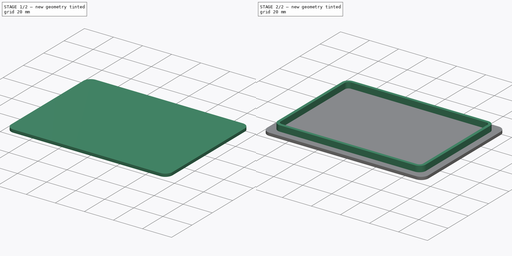
[diagram: build sequence overview — one tinted view per stage of 2, left to right]
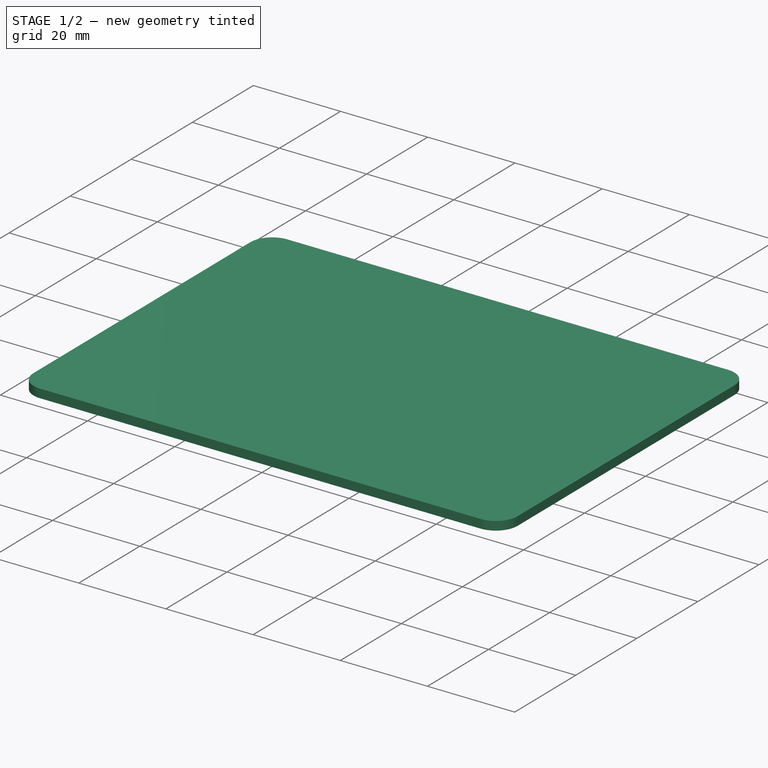
[diagram: stage 1 of 2 — iso view after this stage's code; geometry added in this stage tinted green]
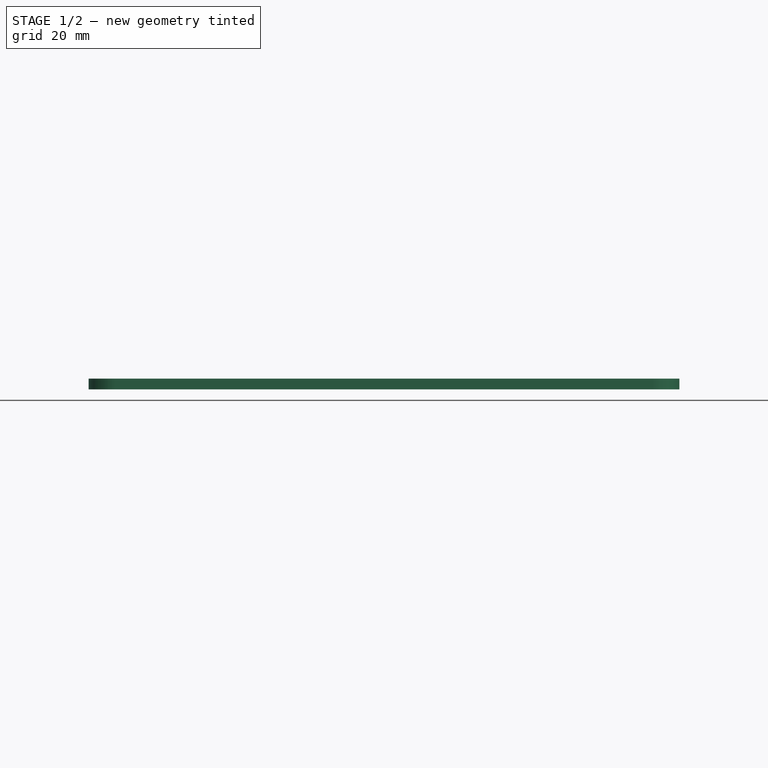
[diagram: stage 1 of 2 — front view after this stage's code; geometry added in this stage tinted green]
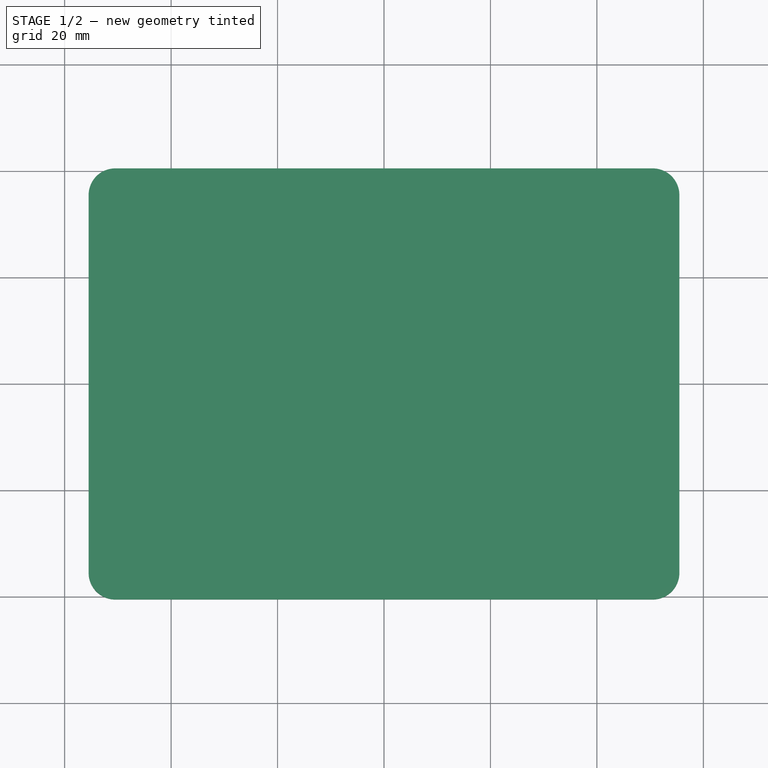
[diagram: stage 1 of 2 — top view after this stage's code; geometry added in this stage tinted green]
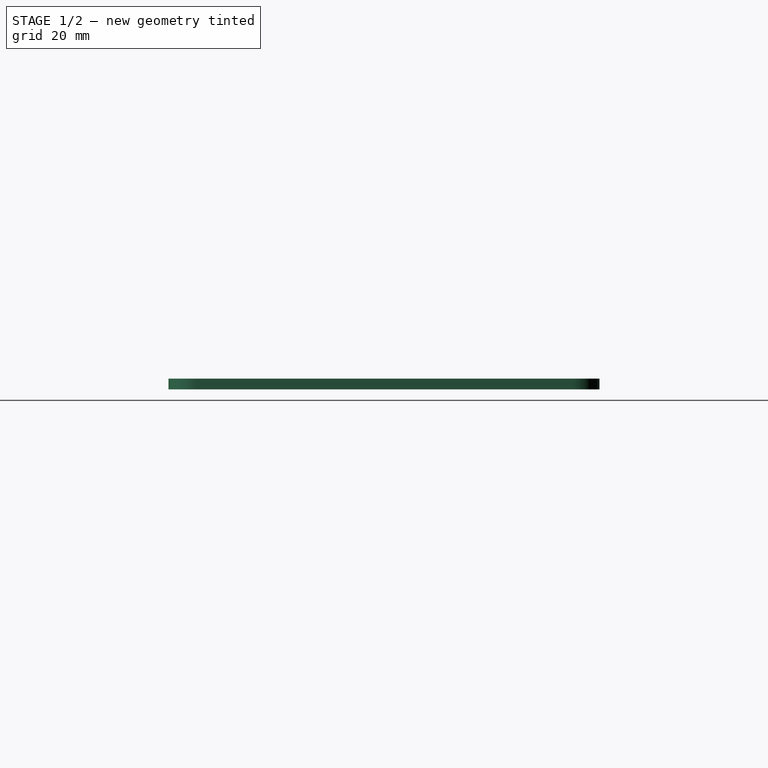
[diagram: stage 1 of 2 — right view after this stage's code; geometry added in this stage tinted green]
FCSTD DOCUMENT  (FreeCAD 0.19R24267 +99 (Git))
Label: V4-lid
License: All rights reserved
LicenseURL: http://en.wikipedia.org/wiki/All_rights_reserved
objects: Sketcher::SketchObject×2, PartDesign::Pad×2, PartDesign::Body×1, Spreadsheet::Sheet×1
note: 7 computed .brp shape members not serialized (recipe doc carries the construction recipe); baked Part::Feature solids carry a one-line shape summary decoded from their .brp

FEATURE [Sketcher::SketchObject] Sketch  label="main_lid"
  FullyConstrained = true
  MapMode = 5
  Support = -> [XY_Plane]
  expr: Constraints[38] = <<param>>.lid_L
  expr: Constraints[37] = <<param>>.lid_W
  sketch-geometry (16):
    g0: LineSegment StartX=-50.5 StartY=35.5 StartZ=0 EndX=50.5 EndY=35.5 EndZ=0
    g1: LineSegment StartX=50.5 StartY=35.5 StartZ=0 EndX=50.5 EndY=-35.5 EndZ=0
    g2: LineSegment StartX=50.5 StartY=-35.5 StartZ=0 EndX=-50.5 EndY=-35.5 EndZ=0
    g3: LineSegment StartX=-50.5 StartY=-35.5 StartZ=0 EndX=-50.5 EndY=35.5 EndZ=0
    g4: ArcOfCircle CenterX=-50.5 CenterY=35.5 CenterZ=0 NormalX=0 NormalY=0 NormalZ=1 AngleXU=0 Radius=5 StartAngle=1.57079 EndAngle=3.14159
    g5: ArcOfCircle CenterX=-50.5 CenterY=-35.5 CenterZ=0 NormalX=0 NormalY=0 NormalZ=1 AngleXU=0 Radius=5 StartAngle=3.14159 EndAngle=4.71239
    g6: ArcOfCircle CenterX=50.5 CenterY=-35.5 CenterZ=0 NormalX=0 NormalY=0 NormalZ=1 AngleXU=0 Radius=5 StartAngle=4.71239 EndAngle=6.28318
    g7: ArcOfCircle CenterX=50.5 CenterY=35.5 CenterZ=0 NormalX=0 NormalY=0 NormalZ=1 AngleXU=0 Radius=5 StartAngle=0 EndAngle=1.5708
    g8: LineSegment StartX=-50.5 StartY=40.5 StartZ=0 EndX=50.5 EndY=40.5 EndZ=0
    g9: LineSegment StartX=55.5 StartY=35.5 StartZ=0 EndX=55.5 EndY=-35.5 EndZ=0
    g10: LineSegment StartX=50.5 StartY=-40.5 StartZ=0 EndX=-50.5 EndY=-40.5 EndZ=0
    g11: LineSegment StartX=-55.5 StartY=-35.5 StartZ=0 EndX=-55.5 EndY=35.5 EndZ=0
    g12: LineSegment StartX=50.5 StartY=40.5 StartZ=0 EndX=50.5 EndY=35.5 EndZ=0
    g13: LineSegment StartX=50.5 StartY=35.5 StartZ=0 EndX=55.5 EndY=35.5 EndZ=0
    g14: LineSegment StartX=-55.5 StartY=-35.5 StartZ=0 EndX=-50.5 EndY=-35.5 EndZ=0
    g15: LineSegment StartX=-50.5 StartY=-40.5 StartZ=0 EndX=-50.5 EndY=-35.5 EndZ=0
  constraints (42):
    c: Coincident(g0,g1)
    c: Coincident(g1,g2)
    c: Coincident(g2,g3)
    c: Coincident(g3,g0)
    c: Horizontal(g2)
    c: Vertical(g3)
    c: Coincident(g4,g0)
    c: Coincident(g5,g2)
    c: Coincident(g6,g1)
    c: Coincident(g7,g0)
    c: Coincident(g8,g4)
    c: Coincident(g8,g7)
    c: Horizontal(g8)
    c: Coincident(g9,g7)
    c: Coincident(g9,g6)
    c: Vertical(g9)
    c: Coincident(g10,g5)
    c: Horizontal(g10)
    c: Coincident(g11,g5)
    c: Coincident(g11,g4)
    c: Vertical(g11)
    c: Equal(g8,g10)
    c: Equal(g9,g11)
    c: Coincident(g10,g6)
    c: Equal(g7,g4)
    c: Equal(g4,g5)
    c: Coincident(g12,g7)
    c: Coincident(g12,g7)
    c: Coincident(g13,g7)
    c: Coincident(g13,g7)
    c: Horizontal(g13)
    c: Coincident(g14,g5)
    c: Coincident(g15,g5)
    c: Coincident(g15,g5)
    c: Coincident(g14,g5)
    c: Vertical(g15)
    c: Horizontal(g14)
    c: DistanceX(g8,g8) = 101
    c: DistanceY(g11,g11) = 71
    c: Radius(g4) = 5
    c: Symmetric(g4,g7,g-2)
    c: Symmetric(g7,g6,g-1)
FEATURE [PartDesign::Pad] Pad
  Direction = (1,1,1)
  Length = 2
  Length2 = 100
  Profile = -> Sketch
  Type = 0
  expr: Length = <<param>>.lid_H
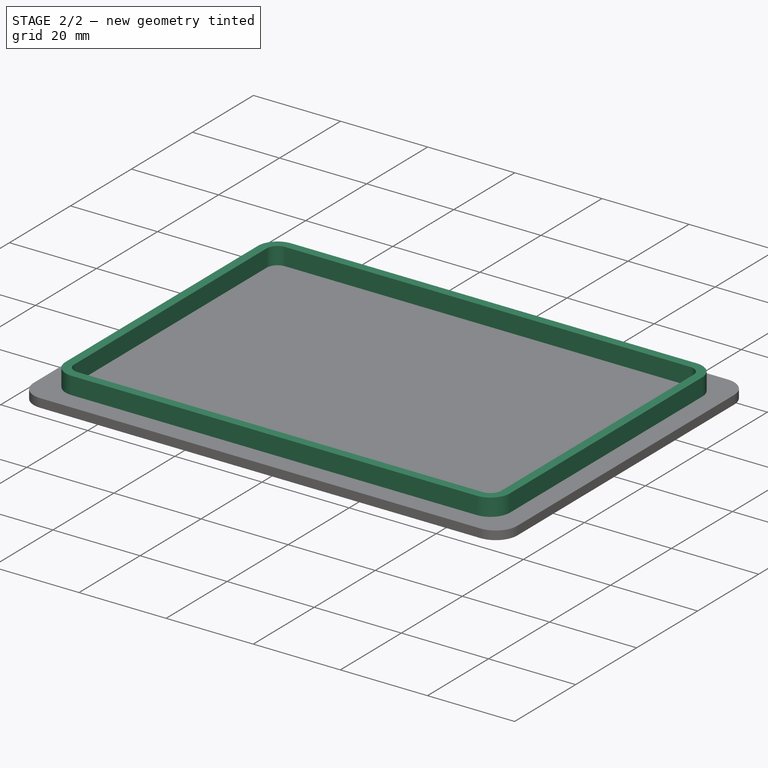
[diagram: stage 2 of 2 — iso view after this stage's code; geometry added in this stage tinted green]
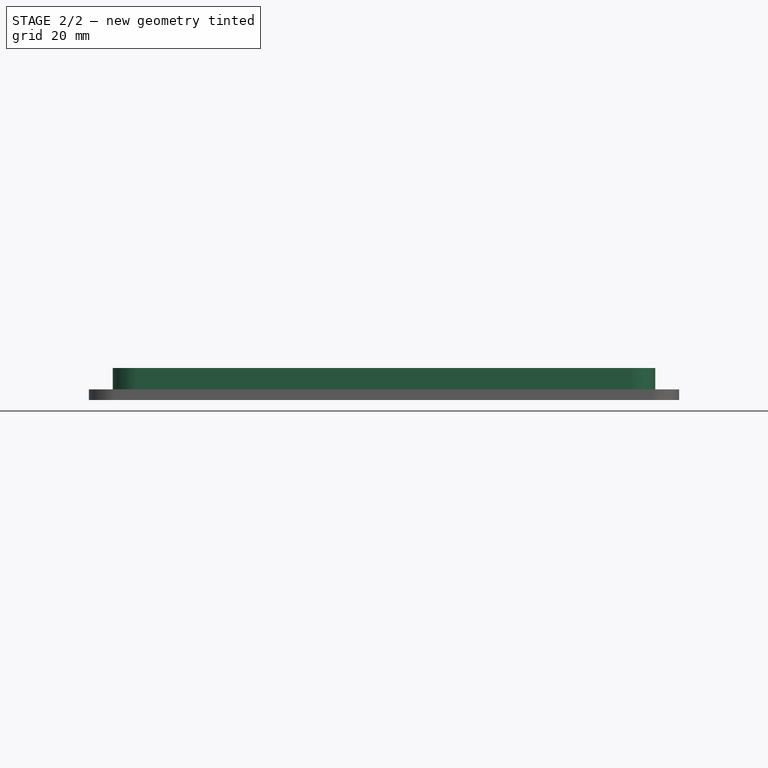
[diagram: stage 2 of 2 — front view after this stage's code; geometry added in this stage tinted green]
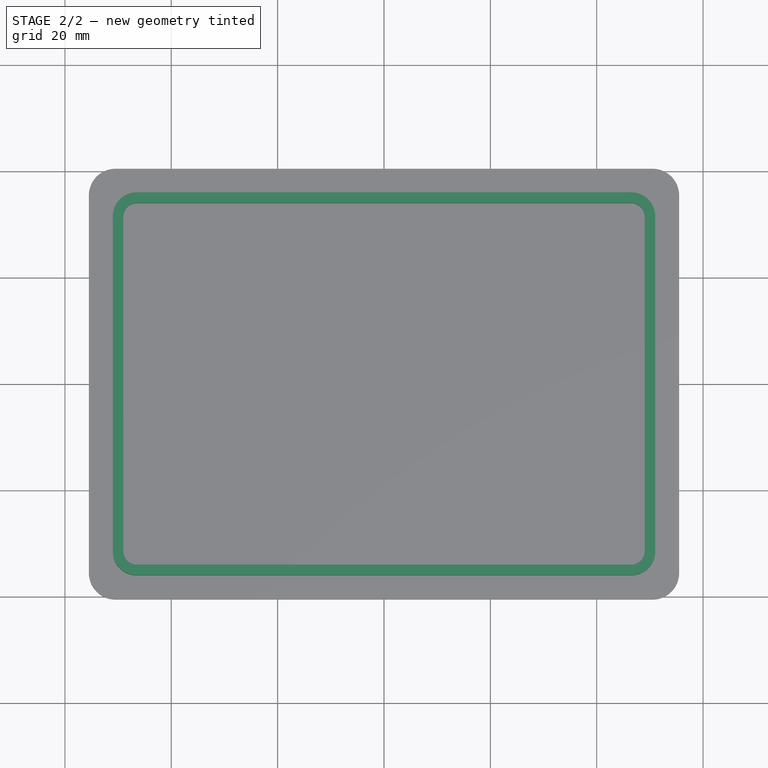
[diagram: stage 2 of 2 — top view after this stage's code; geometry added in this stage tinted green]
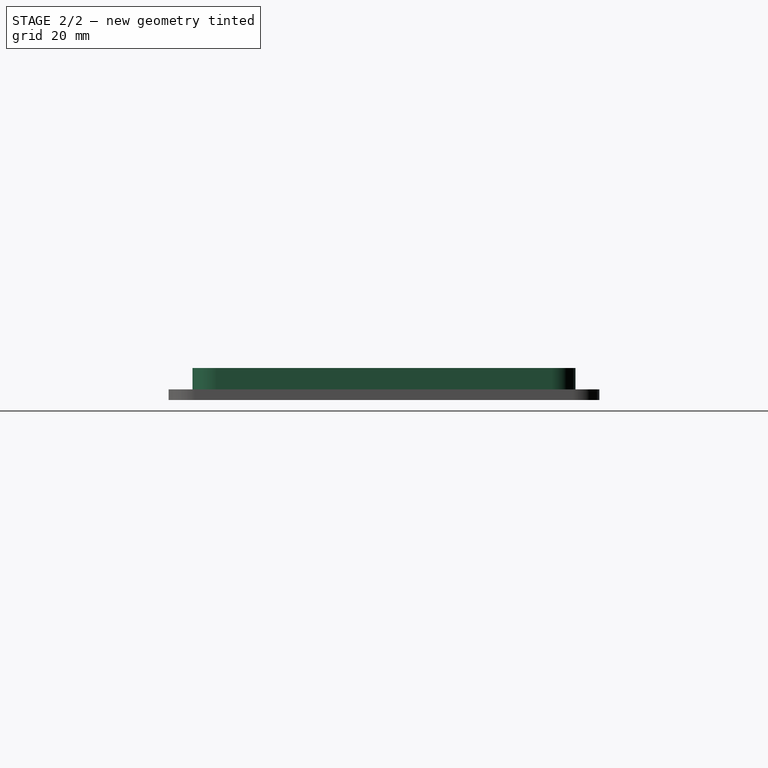
[diagram: stage 2 of 2 — right view after this stage's code; geometry added in this stage tinted green]
FEATURE [Sketcher::SketchObject] Sketch001  label="lid_ring"
  FullyConstrained = true
  MapMode = 5
  Placement = pos=(0,0,2) rot=(0,0,1;0rad)
  Support = -> [Pad]
  expr: Constraints[77] = <<param>>.ring_T
  expr: Constraints[79] = <<param>>.ring_L
  expr: Constraints[78] = <<param>>.ring_W
  sketch-geometry (31):
    g0: LineSegment StartX=-46.5 StartY=31.5 StartZ=0 EndX=46.5 EndY=31.5 EndZ=0
    g1: LineSegment StartX=46.5 StartY=31.5 StartZ=0 EndX=46.5 EndY=-31.5 EndZ=0
    g2: LineSegment StartX=46.5 StartY=-31.5 StartZ=0 EndX=-46.5 EndY=-31.5 EndZ=0
    g3: LineSegment StartX=-46.5 StartY=-31.5 StartZ=0 EndX=-46.5 EndY=31.5 EndZ=0
    g4: ArcOfCircle CenterX=-46.5 CenterY=31.5 CenterZ=0 NormalX=0 NormalY=0 NormalZ=1 AngleXU=0 Radius=2.5 StartAngle=1.5708 EndAngle=3.14159
    g5: ArcOfCircle CenterX=-46.5 CenterY=-31.5 CenterZ=0 NormalX=0 NormalY=0 NormalZ=1 AngleXU=0 Radius=2.5 StartAngle=3.14159 EndAngle=4.71239
    g6: ArcOfCircle CenterX=46.5 CenterY=-31.5 CenterZ=0 NormalX=0 NormalY=0 NormalZ=1 AngleXU=0 Radius=2.5 StartAngle=4.71239 EndAngle=6.28319
    g7: ArcOfCircle CenterX=46.5 CenterY=31.5 CenterZ=0 NormalX=0 NormalY=0 NormalZ=1 AngleXU=0 Radius=2.5 StartAngle=6.28318 EndAngle=7.85398
    g8: ArcOfCircle CenterX=46.5 CenterY=31.5 CenterZ=0 NormalX=0 NormalY=0 NormalZ=1 AngleXU=0 Radius=4.5 StartAngle=1.28774e-08 EndAngle=1.5708
    g9: ArcOfCircle CenterX=-46.5 CenterY=31.5 CenterZ=0 NormalX=0 NormalY=0 NormalZ=1 AngleXU=0 Radius=4.5 StartAngle=1.5708 EndAngle=3.14159
    g10: ArcOfCircle CenterX=-46.5 CenterY=-31.5 CenterZ=0 NormalX=0 NormalY=0 NormalZ=1 AngleXU=0 Radius=4.5 StartAngle=3.14159 EndAngle=4.71239
    g11: ArcOfCircle CenterX=46.5 CenterY=-31.5 CenterZ=0 NormalX=0 NormalY=0 NormalZ=1 AngleXU=0 Radius=4.5 StartAngle=4.71239 EndAngle=6.28319
    g12: LineSegment StartX=-51 StartY=31.5 StartZ=0 EndX=-51 EndY=-31.5 EndZ=0
    g13: LineSegment StartX=-49 StartY=-31.5 StartZ=0 EndX=-49 EndY=31.5 EndZ=0
    g14: LineSegment StartX=-46.5 StartY=34 StartZ=0 EndX=46.5 EndY=34 EndZ=0
    g15: LineSegment StartX=46.5 StartY=36 StartZ=0 EndX=-46.5 EndY=36 EndZ=0
    g16: LineSegment StartX=49 StartY=-31.5 StartZ=0 EndX=49 EndY=31.5 EndZ=0
    g17: LineSegment StartX=51 StartY=31.5 StartZ=0 EndX=51 EndY=-31.5 EndZ=0
    g18: LineSegment StartX=46.5 StartY=-36 StartZ=0 EndX=-46.5 EndY=-36 EndZ=0
    g19: LineSegment StartX=-46.5 StartY=-34 StartZ=0 EndX=46.5 EndY=-34 EndZ=0
    g20: LineSegment StartX=-46.5 StartY=36 StartZ=0 EndX=-46.5 EndY=34 EndZ=0
    g21: LineSegment StartX=-46.5 StartY=34 StartZ=0 EndX=-46.5 EndY=31.5 EndZ=0
    g22: LineSegment StartX=-46.5 StartY=31.5 StartZ=0 EndX=-49 EndY=31.5 EndZ=0
    g23: LineSegment StartX=-49 StartY=31.5 StartZ=0 EndX=-51 EndY=31.5 EndZ=0
    g24: LineSegment StartX=46.5 StartY=-36 StartZ=0 EndX=46.5 EndY=-34 EndZ=0
    g25: LineSegment StartX=46.5 StartY=-34 StartZ=0 EndX=46.5 EndY=-31.5 EndZ=0
    g26: LineSegment StartX=46.5 StartY=-31.5 StartZ=0 EndX=49 EndY=-31.5 EndZ=0
    g27: LineSegment StartX=49 StartY=-31.5 StartZ=0 EndX=51 EndY=-31.5 EndZ=0
    g28: LineSegment StartX=-51 StartY=-31.5 StartZ=0 EndX=-49 EndY=-31.5 EndZ=0
    g29: LineSegment StartX=-49 StartY=-31.5 StartZ=0 EndX=-46.5 EndY=-31.5 EndZ=0
    g30: LineSegment StartX=46.5 StartY=36 StartZ=0 EndX=46.5 EndY=34 EndZ=0
  constraints (81):
    c: Coincident(g0,g1)
    c: Coincident(g1,g2)
    c: Coincident(g2,g3)
    c: Coincident(g3,g0)
    c: Horizontal(g2)
    c: Vertical(g1)
    c: Coincident(g4,g0)
    c: Coincident(g5,g2)
    c: Coincident(g6,g1)
    c: Coincident(g7,g0)
    c: Coincident(g8,g7)
    c: Coincident(g9,g4)
    c: Coincident(g10,g5)
    c: Coincident(g11,g6)
    c: Coincident(g12,g9)
    c: Coincident(g12,g10)
    c: Coincident(g13,g5)
    c: Coincident(g13,g4)
    c: Coincident(g14,g4)
    c: Coincident(g14,g7)
    c: Horizontal(g14)
    c: Coincident(g15,g8)
    c: Coincident(g15,g9)
    c: Horizontal(g15)
    c: Coincident(g16,g6)
    c: Coincident(g16,g7)
    c: Vertical(g16)
    c: Coincident(g17,g8)
    c: Coincident(g17,g11)
    c: Coincident(g18,g11)
    c: Coincident(g18,g10)
    c: Horizontal(g18)
    c: Coincident(g19,g5)
    c: Coincident(g19,g6)
    c: Horizontal(g19)
    c: Vertical(g17)
    c: Vertical(g12)
    c: Equal(g9,g8)
    c: Equal(g8,g11)
    c: Equal(g11,g10)
    c: Equal(g4,g5)
    c: Equal(g5,g6)
    c: Equal(g6,g7)
    c: Coincident(g20,g9)
    c: Coincident(g20,g4)
    c: Coincident(g21,g4)
    c: Coincident(g21,g4)
    c: Coincident(g22,g4)
    c: Coincident(g22,g4)
    c: Coincident(g23,g4)
    c: Coincident(g23,g9)
    c: Coincident(g24,g11)
    c: Coincident(g24,g6)
    c: Coincident(g25,g6)
    c: Coincident(g25,g6)
    c: Vertical(g25)
    c: Coincident(g26,g6)
    c: Coincident(g26,g6)
    c: Coincident(g27,g6)
    c: Coincident(g27,g11)
    c: Horizontal(g26)
    c: Horizontal(g27)
    c: Vertical(g24)
    c: Vertical(g20)
    c: Vertical(g21)
    c: Horizontal(g23)
    c: Horizontal(g22)
    c: Symmetric(g7,g4,g-2)
    c: Symmetric(g5,g4,g-1)
    c: Coincident(g28,g10)
    c: Coincident(g28,g5)
    c: PointOnObject(g29,g5)
    c: Coincident(g29,g5)
    c: Horizontal(g29)
    c: Horizontal(g28)
    c: Coincident(g30,g8)
    c: Coincident(g30,g7)
    c: DistanceY(g30,g30) = 2
    c: DistanceX(g15,g15) = 93
    c: DistanceY(g17,g17) = 63
    c: Radius(g9) = 4.5
FEATURE [PartDesign::Pad] Pad001
  BaseFeature = -> Pad
  Direction = (1,1,1)
  Length = 4
  Length2 = 100
  Profile = -> Sketch001
  Type = 0
  expr: Length = <<param>>.ring_H
FEATURE [PartDesign::Body] Body
  Group = -> [Sketch,Pad,Sketch001,Pad001]
  Origin = -> Origin
  Tip = -> Pad001
FEATURE [Spreadsheet::Sheet] Spreadsheet  label="param"
  cells = A2=ring thickness; B2(ring_T)=2; A3=ring height; B3(ring_H)=4; A4=ring width; B4(ring_W)=93; A5=ring length; B5(ring_L)=63; A6=lid width; B6(lid_W)=101; A7=lid length; B7(lid_L)=71; A8=lid thickness; B8(lid_H)=2
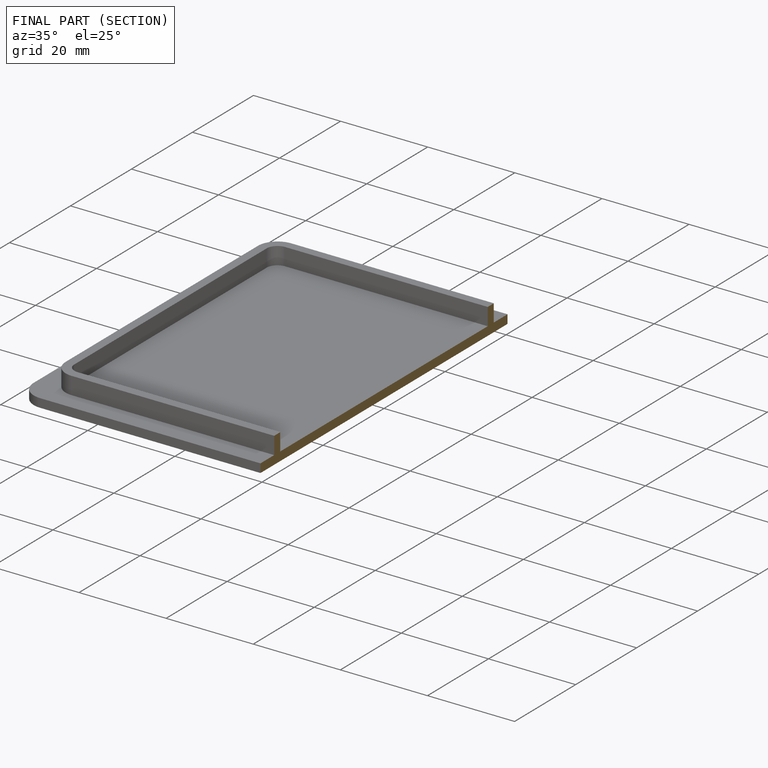
[diagram: finished part — half-section view (interior)]
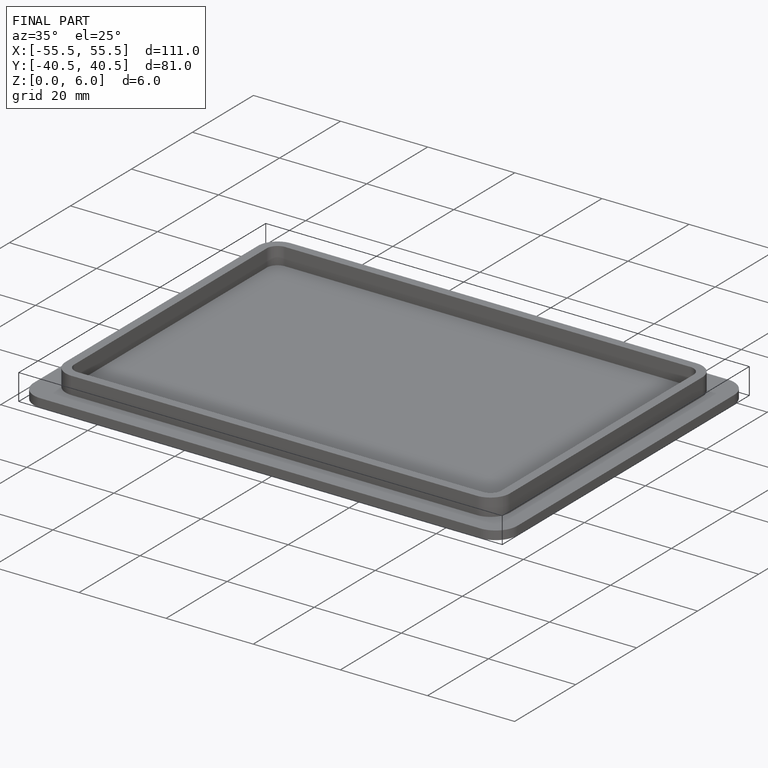
[diagram: finished part — iso view with bounding-box wireframe]
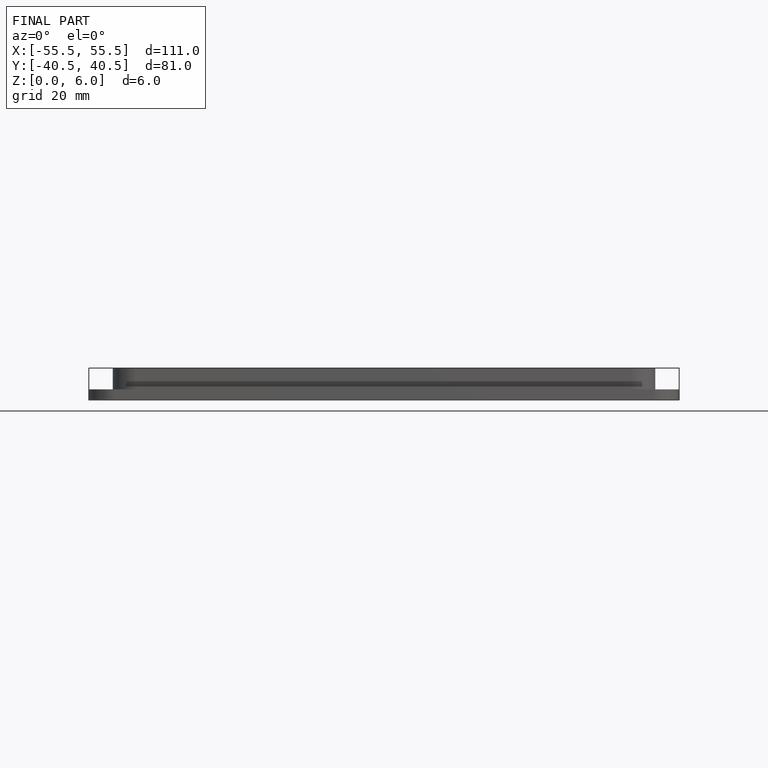
[diagram: finished part — front view with bounding-box wireframe]
